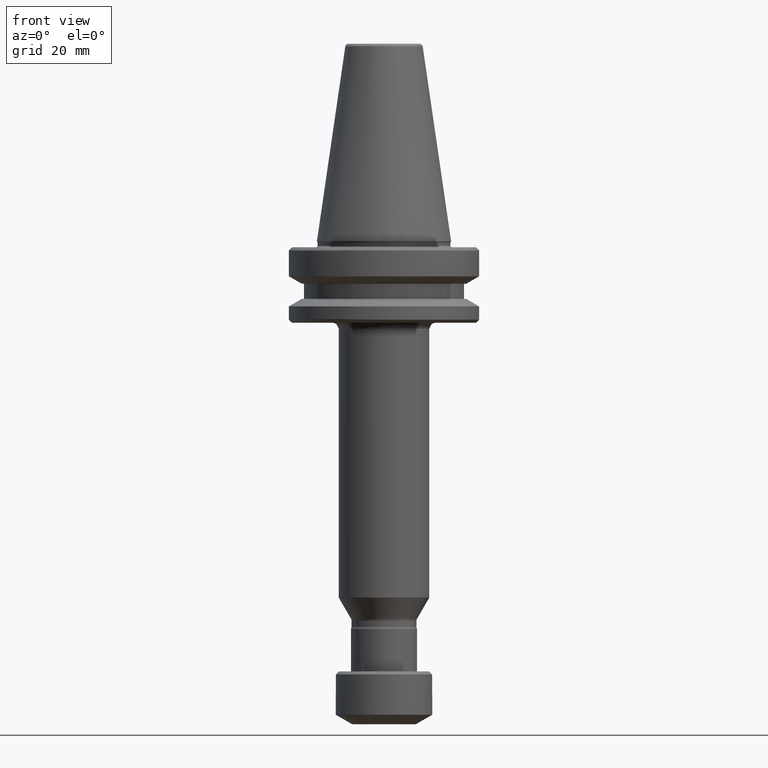
[diagram: clean part render]
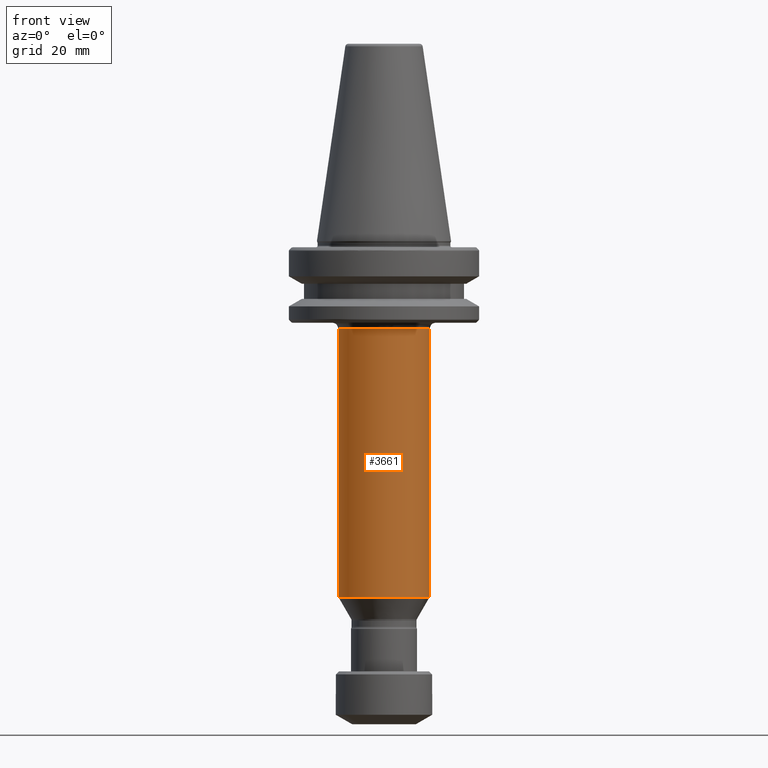
[diagram: same view with one face highlighted and labeled with its STEP entity id]
A machine part, front view. The second image highlights one B-rep face of the part: STEP entity #3661.
In plain terms, the highlighted cylindrical surface (partial cylindrical patch) has radius 15 mm, axis along (0, 0, 1).
Its self-contained STEP definition (entity closure, byte-faithful):
#16 = CYLINDRICAL_SURFACE ( 'NONE', #780, 15.00000000000001400 ) ;
#25 = FACE_OUTER_BOUND ( 'NONE', #1388, .T. ) ;
#40 = AXIS2_PLACEMENT_3D ( 'NONE', #124, #2269, #442 ) ;
#89 = CIRCLE ( 'NONE', #40, 15.00000000000001400 ) ;
#124 = CARTESIAN_POINT ( 'NONE',  ( 119.3965867387900100, 130.0629772186810600, 130.2292367390540200 ) ) ;
#192 = AXIS2_PLACEMENT_3D ( 'NONE', #3581, #2502, #666 ) ;
#362 = CARTESIAN_POINT ( 'NONE',  ( 134.3965867387900100, 130.0629772184116700, 130.2292367390819300 ) ) ;
#442 = DIRECTION ( 'NONE',  ( 1.000000000000000000, 0.0000000000000000000, 0.0000000000000000000 ) ) ;
#483 = DIRECTION ( 'NONE',  ( 0.0000000000000000000, 0.0000000000000000000, 1.000000000000000000 ) ) ;
#620 = LINE ( 'NONE', #1423, #658 ) ;
#658 = VECTOR ( 'NONE', #2339, 1000.000000000000000 ) ;
#666 = DIRECTION ( 'NONE',  ( 1.000000000000000000, 0.0000000000000000000, 0.0000000000000000000 ) ) ;
#720 = CARTESIAN_POINT ( 'NONE',  ( 134.3965867387899800, 130.0629772186810600, 41.19045267005400000 ) ) ;
#751 = EDGE_CURVE ( 'NONE', #1444, #2497, #1101, .T. ) ;
#780 = AXIS2_PLACEMENT_3D ( 'NONE', #2309, #483, #2015 ) ;
#794 = VECTOR ( 'NONE', #3620, 1000.000000000000000 ) ;
#836 = LINE ( 'NONE', #1637, #794 ) ;
#1101 = CIRCLE ( 'NONE', #192, 15.00000000000001400 ) ;
#1388 = EDGE_LOOP ( 'NONE', ( #2205, #1615, #3549, #3783 ) ) ;
#1417 = EDGE_CURVE ( 'NONE', #2497, #1877, #836, .T. ) ;
#1423 = CARTESIAN_POINT ( 'NONE',  ( 134.3965867387900100, 130.0629772186810600, 41.19045267005400000 ) ) ;
#1444 = VERTEX_POINT ( 'NONE', #720 ) ;
#1615 = ORIENTED_EDGE ( 'NONE', *, *, #751, .F. ) ;
#1637 = CARTESIAN_POINT ( 'NONE',  ( 104.3965867387900100, 130.0629772186810600, 41.19045267005400000 ) ) ;
#1720 = VERTEX_POINT ( 'NONE', #362 ) ;
#1877 = VERTEX_POINT ( 'NONE', #1884 ) ;
#1884 = CARTESIAN_POINT ( 'NONE',  ( 104.3965867387900100, 130.0629772168350900, 130.2292367390819300 ) ) ;
#1998 = EDGE_CURVE ( 'NONE', #1444, #1720, #620, .T. ) ;
#2015 = DIRECTION ( 'NONE',  ( 1.000000000000000000, 0.0000000000000000000, 0.0000000000000000000 ) ) ;
#2205 = ORIENTED_EDGE ( 'NONE', *, *, #1417, .F. ) ;
#2269 = DIRECTION ( 'NONE',  ( 0.0000000000000000000, 0.0000000000000000000, 1.000000000000000000 ) ) ;
#2309 = CARTESIAN_POINT ( 'NONE',  ( 119.3965867387900100, 130.0629772186810600, 41.19045267005400000 ) ) ;
#2339 = DIRECTION ( 'NONE',  ( 0.0000000000000000000, 0.0000000000000000000, 1.000000000000000000 ) ) ;
#2497 = VERTEX_POINT ( 'NONE', #3098 ) ;
#2502 = DIRECTION ( 'NONE',  ( -0.0000000000000000000, -0.0000000000000000000, -1.000000000000000000 ) ) ;
#3098 = CARTESIAN_POINT ( 'NONE',  ( 104.3965867387900100, 130.0629772186810600, 41.19045267005400000 ) ) ;
#3479 = EDGE_CURVE ( 'NONE', #1877, #1720, #89, .T. ) ;
#3549 = ORIENTED_EDGE ( 'NONE', *, *, #1998, .T. ) ;
#3581 = CARTESIAN_POINT ( 'NONE',  ( 119.3965867387900100, 130.0629772186810600, 41.19045267005400000 ) ) ;
#3620 = DIRECTION ( 'NONE',  ( 0.0000000000000000000, 0.0000000000000000000, 1.000000000000000000 ) ) ;
#3661 = ADVANCED_FACE ( 'NONE', ( #25 ), #16, .T. ) ;
#3783 = ORIENTED_EDGE ( 'NONE', *, *, #3479, .F. ) ;